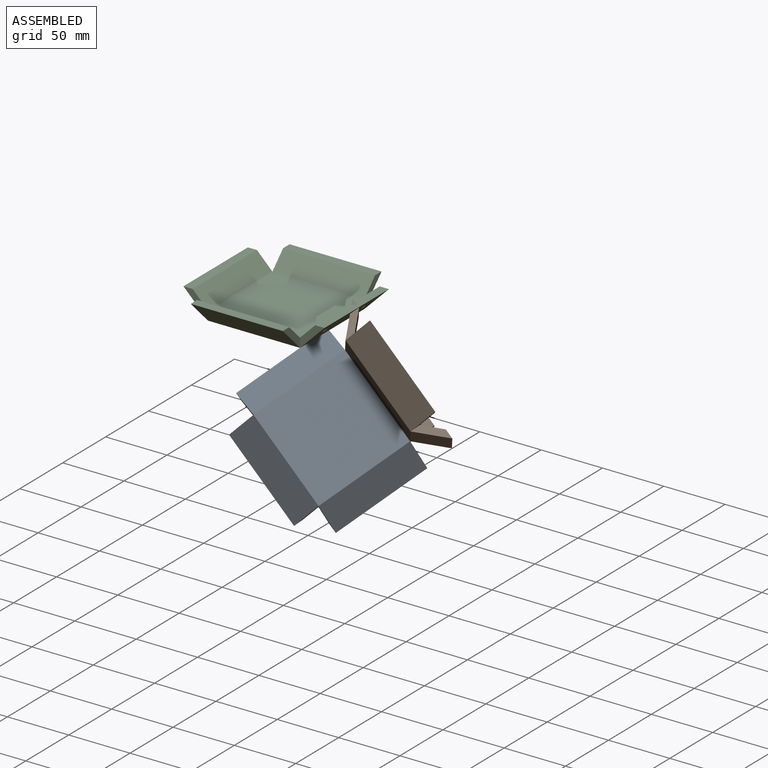
[diagram: assembled view]
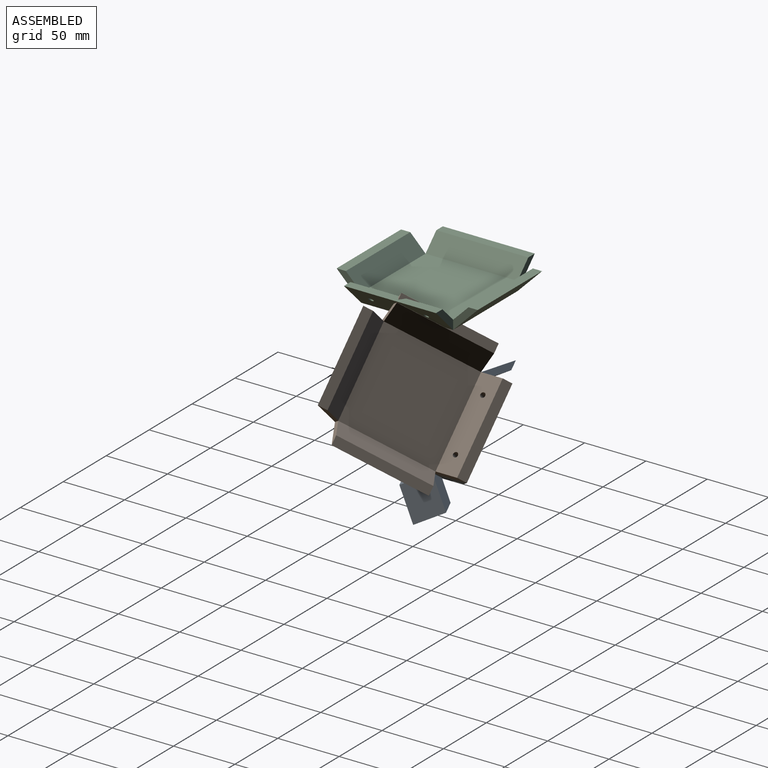
[diagram: assembled view, second angle]
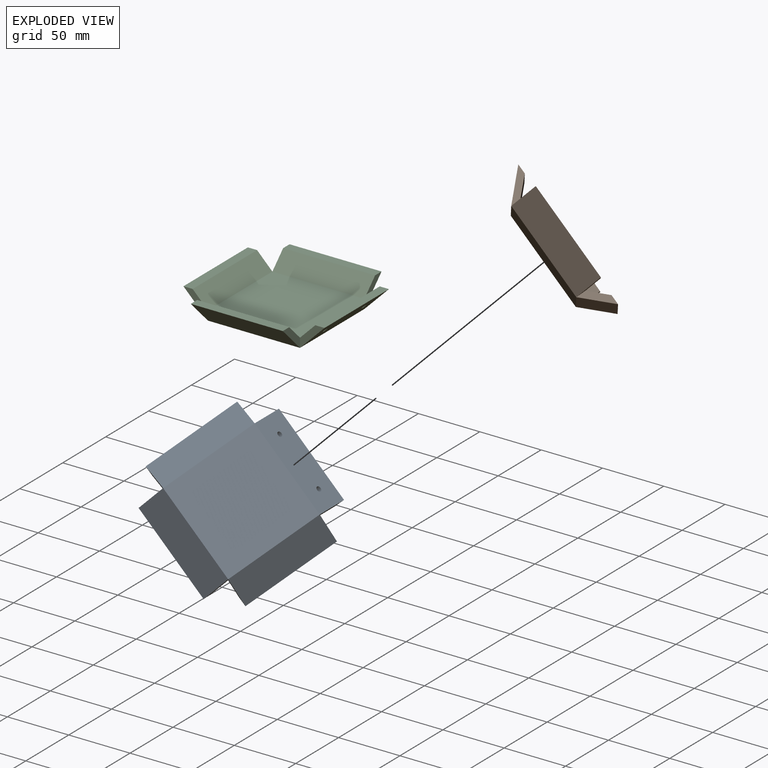
[diagram: exploded view]
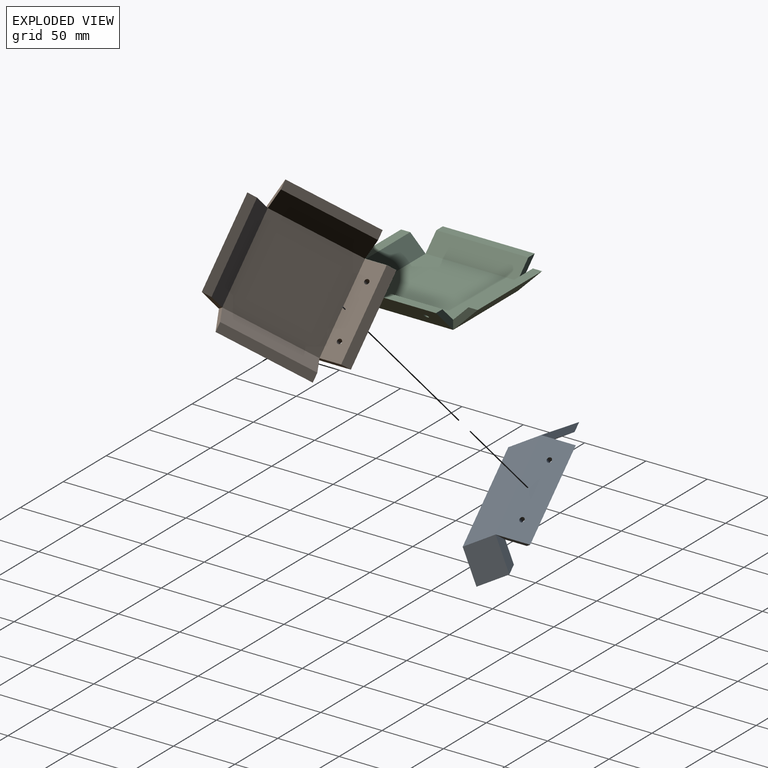
[diagram: exploded view, second angle]
ASSEMBLY  parts=3 mates=2
PART A: 24 faces, bbox 115x115x20 mm
  f0: plane 20x20mm, normal (0,1,0), area 121.9mm2, adj f6,f7,f8,f21
  f1: plane 20x20mm, normal (0,-1,0), area 121.9mm2, adj f6,f7,f8,f14
  f2: plane 20x20mm, normal (0,1,0), area 121.9mm2, adj f9,f10,f11,f20
  f3: plane 20x20mm, normal (0,-1,0), area 121.9mm2, adj f9,f10,f11,f13
  f4: plane 75x75mm, normal (0,0,1), area 5625mm2, adj f8,f11,f16,f19
  f5: plane 75x75mm, normal (0,0,-1), area 5625mm2, adj f7,f9,f15,f17
  f6: plane 75x7.5mm, normal (0,0,1), area 562.5mm2, adj f0,f1,f7,f8
  f7: plane 75x20mm, normal (-0.71,0,-0.71), area 2121.3mm2, adj f0,f1,f5,f6
  f8: plane 75x12.5mm, normal (0.71,0,0.71), area 1325.8mm2, adj f0,f1,f4,f6
  f9: plane 75x20mm, normal (0.71,0,-0.71), area 2096.2mm2, adj f2,f3,f5,f10,f22,f23
  f10: plane 75x7.5mm, normal (0,0,1), area 562.5mm2, adj f2,f3,f9,f11
  f11: plane 75x12.5mm, normal (-0.71,0,0.71), area 1300.7mm2, adj f2,f3,f4,f10,f22,f23
  f12: plane 75x7.5mm, normal (0,0,1), area 562.5mm2, adj f13,f14,f15,f16
  f13: plane 20x20mm, normal (1,0,0), area 121.9mm2, adj f3,f12,f15,f16
  f14: plane 20x20mm, normal (-1,0,0), area 121.9mm2, adj f1,f12,f15,f16
  f15: plane 75x20mm, normal (0,-0.71,-0.71), area 2121.3mm2, adj f5,f12,f13,f14
  f16: plane 75x12.5mm, normal (0,0.71,0.71), area 1325.8mm2, adj f4,f12,f13,f14
  f17: plane 75x20mm, normal (0,0.71,-0.71), area 2121.3mm2, adj f5,f18,f20,f21
  f18: plane 75x7.5mm, normal (0,0,1), area 562.5mm2, adj f17,f19,f20,f21
  f19: plane 75x12.5mm, normal (0,-0.71,0.71), area 1325.8mm2, adj f4,f18,f20,f21
  f20: plane 20x20mm, normal (1,0,0), area 121.9mm2, adj f2,f17,f18,f19
  f21: plane 20x20mm, normal (-1,0,0), area 121.9mm2, adj f0,f17,f18,f19
  f22: cylinder r=2mm len=6.58mm, axis (-0.71,0,0.71), area 66.6mm2, adj f9,f11
  f23: cylinder r=2mm len=6.58mm, axis (-0.71,0,0.71), area 66.6mm2, adj f9,f11
PART B: same geometry as A
PART C: same geometry as A
PLACE A rot(axis=(-0.82,-0.58,0),120deg) t=(-2.87,-60.93,8.35)mm
PLACE B rot(axis=(0,0.58,0.82),120deg) t=(34.63,-60.93,45.85)mm
PLACE C t=(-28.14,-77.98,91.54)mm
MATE cylindrical A.f22 <-> B.f23  axis (0.71,0,0.71) through (-0.03,-20.27,43.01)mm
MATE cylindrical A.f23 <-> B.f22  axis (0.71,0,0.71) through (31.79,-20.27,11.19)mm
